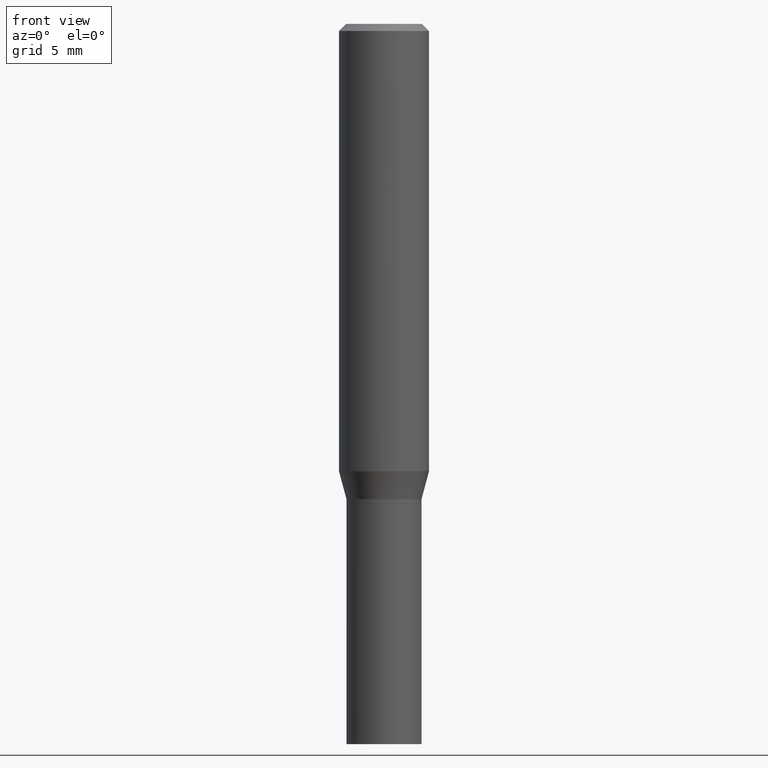
[diagram: clean part render]
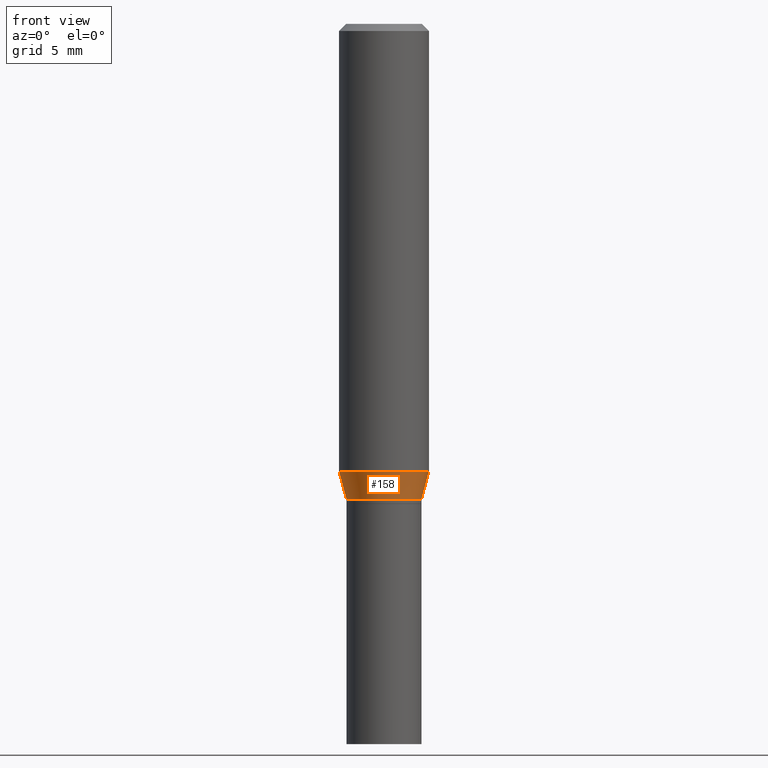
[diagram: same view with one face highlighted and labeled with its STEP entity id]
A machine part, front view. The second image highlights one B-rep face of the part: STEP entity #158.
In plain terms, the highlighted conical surface has half-angle 15 deg.
Its self-contained STEP definition (entity closure, byte-faithful):
#4 = FACE_OUTER_BOUND ( 'NONE', #363, .T. ) ;
#16 = CARTESIAN_POINT ( 'NONE',  ( 0.07810000000000004439, -4.001935910582012553E-15, -0.9900000000000001021 ) ) ;
#24 = DIRECTION ( 'NONE',  ( 1.000000000000000000, -6.982962677686269077E-15, 0.000000000000000000 ) ) ;
#36 = VERTEX_POINT ( 'NONE', #438 ) ;
#41 = LINE ( 'NONE', #313, #302 ) ;
#43 = DIRECTION ( 'NONE',  ( -0.2588190451025214611, 5.211531920934550253E-15, 0.9659258262890679791 ) ) ;
#57 = VECTOR ( 'NONE', #275, 39.37007874015748143 ) ;
#69 = AXIS2_PLACEMENT_3D ( 'NONE', #401, #166, #154 ) ;
#77 = ORIENTED_EDGE ( 'NONE', *, *, #388, .T. ) ;
#96 = CONICAL_SURFACE ( 'NONE', #69, 0.07810000000000004439, 0.2617993877991501850 ) ;
#131 = CARTESIAN_POINT ( 'NONE',  ( 0.07810000000000004439, -4.001935910582012553E-15, -0.9900000000000001021 ) ) ;
#147 = VERTEX_POINT ( 'NONE', #355 ) ;
#154 = DIRECTION ( 'NONE',  ( 1.000000000000000000, -6.982962677686269077E-15, 0.000000000000000000 ) ) ;
#158 = ADVANCED_FACE ( 'NONE', ( #4 ), #96, .T. ) ;
#166 = DIRECTION ( 'NONE',  ( -2.445468806185136597E-29, 3.491481338843145583E-15, 1.000000000000000000 ) ) ;
#178 = CIRCLE ( 'NONE', #343, 0.07810000000000004439 ) ;
#192 = EDGE_CURVE ( 'NONE', #218, #36, #41, .T. ) ;
#197 = AXIS2_PLACEMENT_3D ( 'NONE', #349, #465, #428 ) ;
#212 = LINE ( 'NONE', #16, #57 ) ;
#218 = VERTEX_POINT ( 'NONE', #353 ) ;
#245 = CIRCLE ( 'NONE', #197, 0.09375000000000001388 ) ;
#250 = ORIENTED_EDGE ( 'NONE', *, *, #262, .F. ) ;
#262 = EDGE_CURVE ( 'NONE', #36, #147, #245, .T. ) ;
#273 = EDGE_CURVE ( 'NONE', #435, #147, #212, .T. ) ;
#275 = DIRECTION ( 'NONE',  ( 0.2588190451025214611, 1.565188264969620982E-15, 0.9659258262890679791 ) ) ;
#294 = ORIENTED_EDGE ( 'NONE', *, *, #192, .F. ) ;
#302 = VECTOR ( 'NONE', #43, 39.37007874015748143 ) ;
#313 = CARTESIAN_POINT ( 'NONE',  ( -0.07810000000000004439, -2.901632648826075669E-15, -0.9900000000000001021 ) ) ;
#320 = ORIENTED_EDGE ( 'NONE', *, *, #273, .T. ) ;
#343 = AXIS2_PLACEMENT_3D ( 'NONE', #367, #378, #24 ) ;
#349 = CARTESIAN_POINT ( 'NONE',  ( 2.278182611636715174E-29, -3.252640988463440710E-15, -0.9315934048615475138 ) ) ;
#353 = CARTESIAN_POINT ( 'NONE',  ( -0.07810000000000004439, -2.744069911257211227E-15, -0.9900000000000001021 ) ) ;
#355 = CARTESIAN_POINT ( 'NONE',  ( 0.09375000000000001388, -3.907293739496527425E-15, -0.9315934048615475138 ) ) ;
#363 = EDGE_LOOP ( 'NONE', ( #294, #77, #320, #250 ) ) ;
#367 = CARTESIAN_POINT ( 'NONE',  ( 2.421014118123285332E-29, -3.456566525454714328E-15, -0.9900000000000001021 ) ) ;
#378 = DIRECTION ( 'NONE',  ( -2.445468806185136597E-29, 3.491481338843145583E-15, 1.000000000000000000 ) ) ;
#388 = EDGE_CURVE ( 'NONE', #218, #435, #178, .T. ) ;
#401 = CARTESIAN_POINT ( 'NONE',  ( 2.421014118123285332E-29, -3.456566525454714328E-15, -0.9900000000000001021 ) ) ;
#428 = DIRECTION ( 'NONE',  ( 1.000000000000000000, -6.982962677686266711E-15, 0.000000000000000000 ) ) ;
#435 = VERTEX_POINT ( 'NONE', #131 ) ;
#438 = CARTESIAN_POINT ( 'NONE',  ( -0.09375000000000001388, -2.586507173688346391E-15, -0.9315934048615475138 ) ) ;
#465 = DIRECTION ( 'NONE',  ( -2.445468806185136597E-29, 3.491481338843145583E-15, 1.000000000000000000 ) ) ;